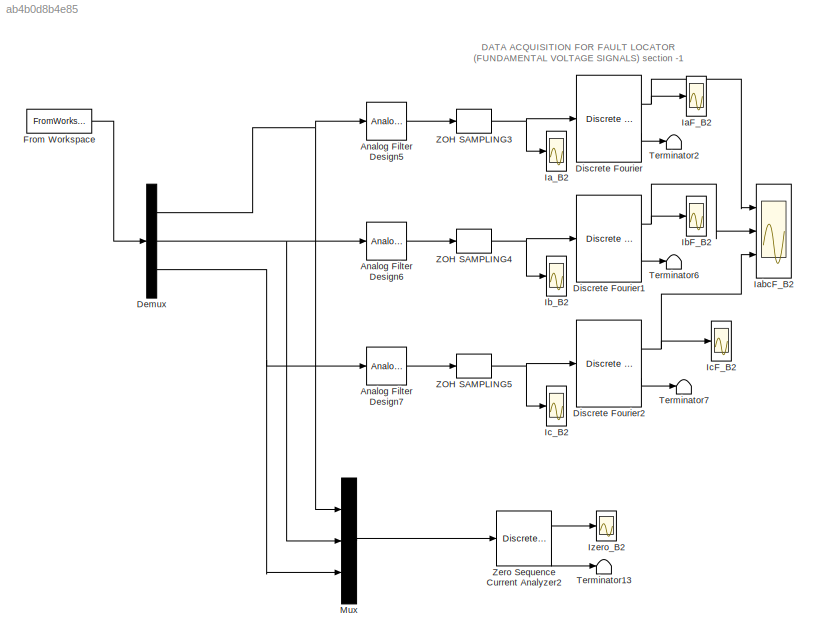
MODEL slx_ab4b0d8b4e85
KIND model
BLOCK [Scope]  Izero_B2
  Floating = off
  MaxDataPoints = 2001
  NumInputPorts = 1
  Ports = [1]
  SampleInput = on
  SampleTime = 1e-3
  SaveName = Izero_B2
  SaveToWorkspace = on
  ShowLegends = off
  TimeRange = 0.2
  YMax = 1.5
  YMin = -1.5
BLOCK [Reference] Analog Filter Design5  REF=dsparch4/Analog
Filter Design
  N = 2
  Ports = [1, 1]
  Rp = 2
  Rs = 40
  SourceBlock = dsparch4/Analog\nFilter Design
  SourceType = Analog Filter Design
  Whi = 80
  Wlo = 2*pi*400
  filttype = Lowpass
  method = Butterworth
BLOCK [Reference] Analog Filter Design6  REF=dsparch4/Analog
Filter Design
  N = 2
  Ports = [1, 1]
  Rp = 2
  Rs = 40
  SourceBlock = dsparch4/Analog\nFilter Design
  SourceType = Analog Filter Design
  Whi = 80
  Wlo = 2*pi*400
  filttype = Lowpass
  method = Butterworth
BLOCK [Reference] Analog Filter Design7  REF=dsparch4/Analog
Filter Design
  N = 2
  Ports = [1, 1]
  Rp = 2
  Rs = 40
  SourceBlock = dsparch4/Analog\nFilter Design
  SourceType = Analog Filter Design
  Whi = 80
  Wlo = 2*pi*400
  filttype = Lowpass
  method = Butterworth
BLOCK [Demux] Demux
  DisplayOption = bar
  Outputs = 3
  Ports = [1, 3]
BLOCK [Reference] Discrete Fourier  REF=powerlib_extras/Discrete
Measurements/Discrete 
Fourier
  Freq = 50
  Par_Init = [0 0]
  Ports = [1, 2]
  SourceBlock = powerlib_extras/Discrete\nMeasurements/Discrete \nFourier
  SourceType = Discrete Fourier
  Ts = 1e-3
  n = 1
BLOCK [Reference] Discrete Fourier1  REF=powerlib_extras/Discrete
Measurements/Discrete 
Fourier
  Freq = 50
  Par_Init = [0 0]
  Ports = [1, 2]
  SourceBlock = powerlib_extras/Discrete\nMeasurements/Discrete \nFourier
  SourceType = Discrete Fourier
  Ts = 1e-3
  n = 1
BLOCK [Reference] Discrete Fourier2  REF=powerlib_extras/Discrete
Measurements/Discrete 
Fourier
  Freq = 50
  Par_Init = [0 0]
  Ports = [1, 2]
  SourceBlock = powerlib_extras/Discrete\nMeasurements/Discrete \nFourier
  SourceType = Discrete Fourier
  Ts = 1e-3
  n = 1
BLOCK [FromWorkspace] From Workspace
  SampleTime = 1e-3
  VariableName = In1
  ZeroCross = on
BLOCK [Scope] IaF_B2
  Floating = off
  LimitDataPoints = off
  MaxDataPoints = 2000
  NumInputPorts = 1
  Ports = [1]
  SampleInput = on
  SampleTime = 1e-3
  SaveName = IaF_B2
  SaveToWorkspace = on
  ShowLegends = off
  TimeRange = 0.1
  YMax = 3000
  YMin = 0
BLOCK [Scope] Ia_B2
  Floating = off
  LimitDataPoints = off
  MaxDataPoints = 2000
  NumInputPorts = 1
  Ports = [1]
  SampleInput = on
  SampleTime = 1e-3
  SaveName = Ia_B2
  SaveToWorkspace = on
  ShowLegends = off
  TimeRange = 0.2
  YMax = 200000
  YMin = -200000
BLOCK [Scope] IabcF_B2
  DataFormat = Structure
  Floating = off
  LimitDataPoints = off
  MaxDataPoints = 2000
  NumInputPorts = 3
  Ports = [3]
  SampleInput = on
  SampleTime = 1e-3
  SaveName = Iabcf_B2
  SaveToWorkspace = on
  ShowLegends = off
  TimeRange = 1
  YMax = 200000~5~5
  YMin = -200000~-5~-5
BLOCK [Scope] IbF_B2
  Floating = off
  LimitDataPoints = off
  MaxDataPoints = 2000
  NumInputPorts = 1
  Ports = [1]
  SampleInput = on
  SampleTime = 1e-3
  SaveName = IbF_B2
  SaveToWorkspace = on
  ShowLegends = off
  TimeRange = 1
  YMax = 200000
  YMin = -200000
BLOCK [Scope] Ib_B2
  Floating = off
  LimitDataPoints = off
  MaxDataPoints = 2000
  NumInputPorts = 1
  Ports = [1]
  SampleInput = on
  SampleTime = 1e-3
  SaveName = Ib_B2
  SaveToWorkspace = on
  ShowLegends = off
  TimeRange = 0.2
  YMax = 200000
  YMin = -200000
BLOCK [Scope] IcF_B2
  Floating = off
  LimitDataPoints = off
  MaxDataPoints = 2000
  NumInputPorts = 1
  Ports = [1]
  SampleInput = on
  SampleTime = 1e-3
  SaveName = IcF_B2
  SaveToWorkspace = on
  ShowLegends = off
  TimeRange = 1
  YMax = 200000
  YMin = -200000
BLOCK [Scope] Ic_B2
  Floating = off
  LimitDataPoints = off
  MaxDataPoints = 2000
  NumInputPorts = 1
  Ports = [1]
  SampleInput = on
  SampleTime = 1e-3
  SaveName = Ic_B2
  SaveToWorkspace = on
  ShowLegends = off
  TimeRange = 0.2
  YMax = 200000
  YMin = -200000
BLOCK [Mux] Mux
  DisplayOption = bar
  Inputs = 3
  Ports = [3, 1]
BLOCK [Terminator] Terminator13
BLOCK [Terminator] Terminator2
BLOCK [Terminator] Terminator6
BLOCK [Terminator] Terminator7
BLOCK [ZeroOrderHold] ZOH SAMPLING3
  SampleTime = 1e-3
BLOCK [ZeroOrderHold] ZOH SAMPLING4
  SampleTime = 1e-3
BLOCK [ZeroOrderHold] ZOH SAMPLING5
  SampleTime = 1e-3
BLOCK [Reference] Zero Sequence Current Analyzer2  REF=powerlib_extras/Discrete
Measurements/Discrete 3-phase
Sequence Analyzer
  Freq = 50
  Par_Init = [0 0]
  Ports = [1, 2]
  SourceBlock = powerlib_extras/Discrete\nMeasurements/Discrete 3-phase\nSequence Analyzer
  SourceType = Discrete 3-Phase Sequence Analyzer
  Ts = 1e-3
  n = 1
  seq = Zero
ANNOTATION (root): DATA ACQUISITION FOR FAULT LOCATOR (FUNDAMENTAL VOLTAGE SIGNALS) section -1
LINE Analog Filter Design5:1 -> ZOH SAMPLING3:1
LINE Analog Filter Design6:1 -> ZOH SAMPLING4:1
LINE Analog Filter Design7:1 -> ZOH SAMPLING5:1
NET Demux:1 -> Analog Filter Design5:1, Mux:1
NET Demux:2 -> Analog Filter Design6:1, Mux:2
NET Demux:3 -> Analog Filter Design7:1, Mux:3
NET Discrete Fourier1:1 -> IabcF_B2:2, IbF_B2:1
LINE Discrete Fourier1:2 -> Terminator6:1
NET Discrete Fourier2:1 -> IabcF_B2:3, IcF_B2:1
LINE Discrete Fourier2:2 -> Terminator7:1
NET Discrete Fourier:1 -> IaF_B2:1, IabcF_B2:1
LINE Discrete Fourier:2 -> Terminator2:1
LINE From Workspace:1 -> Demux:1
LINE Mux:1 -> Zero Sequence Current Analyzer2:1
NET ZOH SAMPLING3:1 -> Discrete Fourier:1, Ia_B2:1
NET ZOH SAMPLING4:1 -> Discrete Fourier1:1, Ib_B2:1
NET ZOH SAMPLING5:1 -> Discrete Fourier2:1, Ic_B2:1
LINE Zero Sequence Current Analyzer2:1 ->  Izero_B2:1
LINE Zero Sequence Current Analyzer2:2 -> Terminator13:1
note: NET lines group one-source signal fan-out (src -> all destinations, sorted); 1:1 wires keep LINE
